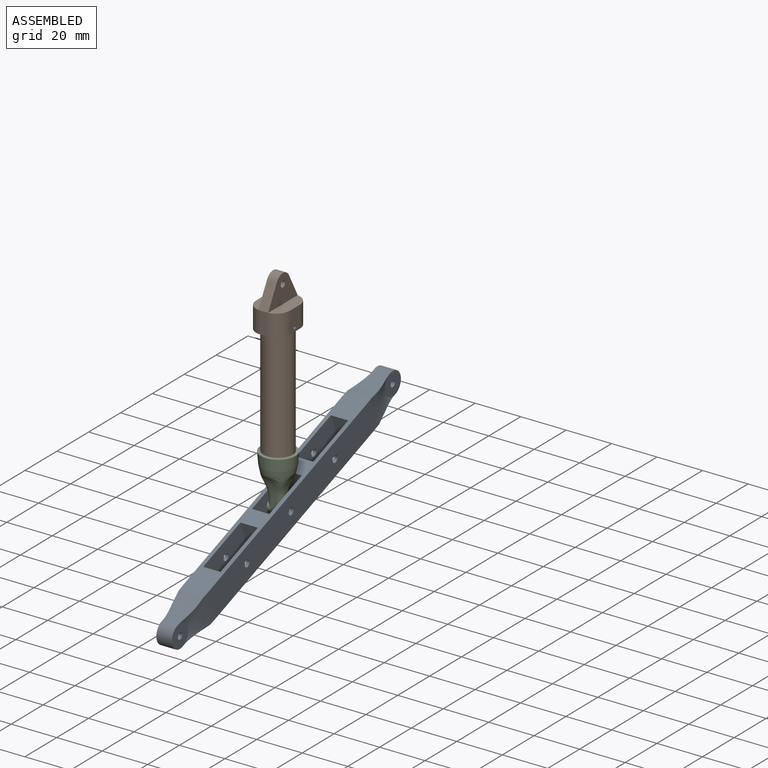
[diagram: assembled view]
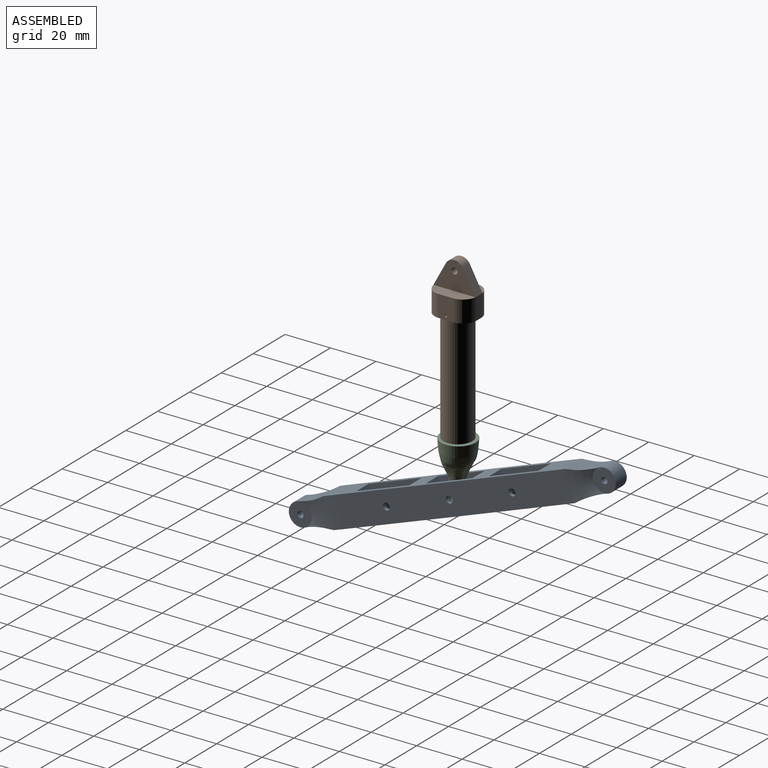
[diagram: assembled view, second angle]
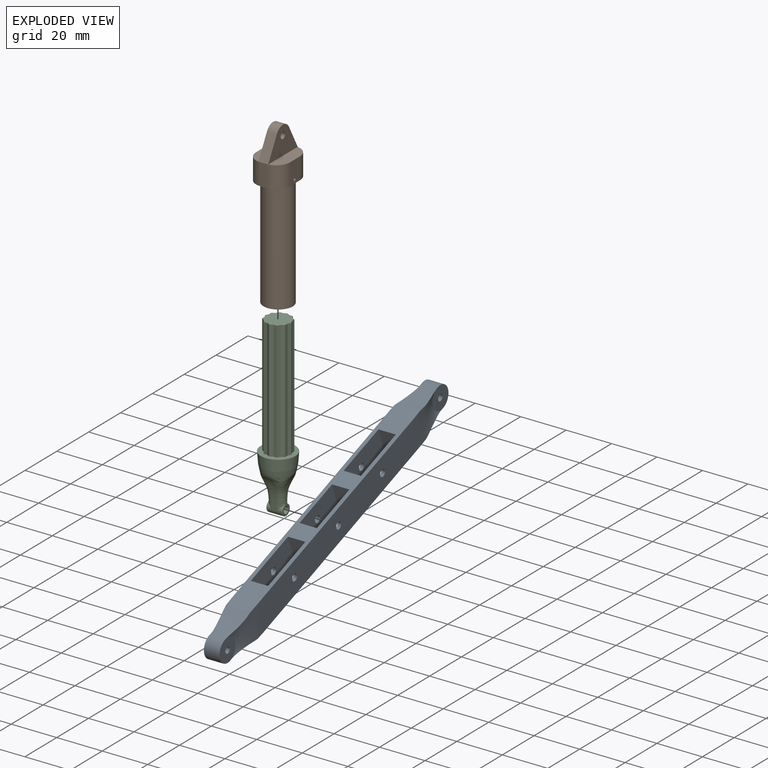
[diagram: exploded view]
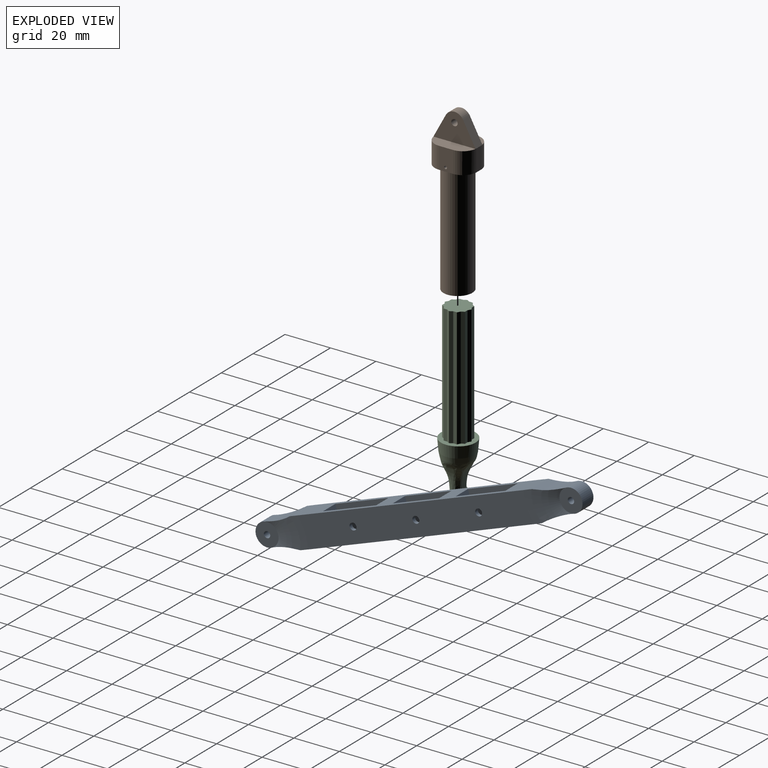
[diagram: exploded view, second angle]
ASSEMBLY  parts=3 mates=2
PART A: 39 faces, bbox 11x152.8x38.3 mm
  f0: plane 113.28x11.04mm, normal (0,0,1), area 701.8mm2, adj f6,f7,f13,f14,f23,f24,f25,f26
  f1: plane 56.71x11.04mm, normal (0,0,-1), area 354.4mm2, adj f2,f8,f13,f14,f24,f26,f32,f33
  f2: plane 56.71x11.04mm, normal (0,0,-1), area 347.6mm2, adj f1,f9,f13,f14,f23,f25,f27,f28
  f3: cylinder r=1.52mm len=3.05mm, axis (-1,0,0), area 15.8mm2, adj f13,f38
  f4: cylinder r=1.52mm len=3.05mm, axis (-1,0,0), area 15.8mm2, adj f13,f32
  f5: cylinder r=1.52mm len=3.05mm, axis (-1,0,0), area 15.8mm2, adj f13,f29
  f6: cylinder r=40.03mm len=14.67mm, axis (-1,0,0), area 128.6mm2, adj f0,f19,f21,f22,f23,f25
  f7: cylinder r=40.03mm len=14.67mm, axis (-1,0,0), area 128.6mm2, adj f0,f15,f17,f18,f24,f26
  f8: cylinder r=40.03mm len=14.66mm, axis (-1,0,0), area 129mm2, adj f1,f15,f17,f18,f24,f26
  f9: cylinder r=40.03mm len=14.66mm, axis (-1,0,0), area 129mm2, adj f2,f19,f21,f22,f23,f25
  f10: cylinder r=1.52mm len=3.05mm, axis (-1,0,0), area 15.8mm2, adj f14,f36
  f11: cylinder r=1.52mm len=3.05mm, axis (-1,0,0), area 15.8mm2, adj f14,f33
  f12: cylinder r=1.52mm len=3.05mm, axis (-1,0,0), area 15.8mm2, adj f14,f30
  f13: plane 106.25x13.21mm, normal (1,0,0), area 1357.4mm2, adj f0,f1,f2,f3,f4,f5,f25,f26
  f14: plane 106.25x13.21mm, normal (-1,0,0), area 1357.4mm2, adj f0,f1,f2,f10,f11,f12,f23,f24
  f15: cylinder r=5.08mm len=10.16mm, axis (-1,0,0), area 109.4mm2, adj f7,f8,f17,f18
  f16: cylinder r=1.4mm len=6.86mm, axis (-1,0,0), area 60.2mm2, adj f17,f18
  f17: plane 10.16x10.16mm, normal (1,0,0), area 74.9mm2, adj f7,f8,f15,f16,f26
  f18: plane 10.16x10.16mm, normal (-1,0,0), area 74.9mm2, adj f7,f8,f15,f16,f24
  f19: cylinder r=5.08mm len=10.16mm, axis (-1,0,0), area 109.4mm2, adj f6,f9,f21,f22
  f20: cylinder r=1.4mm len=6.86mm, axis (-1,0,0), area 60.2mm2, adj f21,f22
  f21: plane 10.16x10.16mm, normal (1,0,0), area 74.9mm2, adj f6,f9,f19,f20,f25
  f22: plane 10.16x10.16mm, normal (-1,0,0), area 74.9mm2, adj f6,f9,f19,f20,f23
  f23: torus R=19.3mm, axis (1,0,0), area 175.4mm2, adj f0,f2,f6,f9,f14,f22
  f24: torus R=19.3mm, axis (1,0,0), area 175.4mm2, adj f0,f1,f7,f8,f14,f18
  f25: torus R=19.3mm, axis (1,0,0), area 175.4mm2, adj f0,f2,f6,f9,f13,f21
  f26: torus R=19.3mm, axis (1,0,0), area 175.4mm2, adj f0,f1,f7,f8,f13,f17
  f27: plane 13.16x7.62mm, normal (0,-1,0), area 100.3mm2, adj f0,f2,f29,f30
  f28: plane 13.19x7.62mm, normal (0,1,0), area 100.5mm2, adj f0,f2,f29,f30
  f29: plane 23.33x13.19mm, normal (-1,0,0), area 300.1mm2, adj f0,f2,f5,f27,f28
  f30: plane 23.33x13.19mm, normal (1,0,0), area 300.1mm2, adj f0,f2,f12,f27,f28
  f31: plane 13.2x7.62mm, normal (0,-1,0), area 100.5mm2, adj f0,f2,f32,f33
  f32: plane 21.78x13.21mm, normal (-1,0,0), area 280.2mm2, adj f0,f1,f2,f4,f31,f34
  f33: plane 21.78x13.21mm, normal (1,0,0), area 280.2mm2, adj f0,f1,f2,f11,f31,f34
  f34: plane 13.2x7.62mm, normal (0,1,0), area 100.6mm2, adj f0,f1,f32,f33
  f35: plane 13.19x7.62mm, normal (0,-1,0), area 100.5mm2, adj f0,f1,f36,f38
  f36: plane 24.93x13.19mm, normal (1,0,0), area 321.2mm2, adj f0,f1,f10,f35,f37
  f37: plane 13.16x7.62mm, normal (0,1,0), area 100.3mm2, adj f0,f1,f36,f38
  f38: plane 24.93x13.19mm, normal (-1,0,0), area 321.2mm2, adj f0,f1,f3,f35,f37
PART B: 47 faces, bbox 15.1x18.7x71.2 mm
  f0: plane 12.95x12.7mm, normal (0,0,-1), area 34.2mm2, adj f18,f19,f20,f21,f22,f23,f24,f25
  f1: plane 18.54x14.99mm, normal (0,0,-1), area 116.7mm2, adj f9,f11,f12,f13,f14,f15,f16,f17
  f2: plane 10.13x5.53mm, normal (0,-0.88,0.48), area 49.4mm2, adj f4,f6,f7,f11,f15,f17
  f3: plane 10.13x5.53mm, normal (0,0.88,0.48), area 49.4mm2, adj f4,f6,f7,f9,f14,f16
  f4: cylinder r=4.32mm len=7.59mm, axis (-1,0,0), area 40mm2, adj f2,f3,f6,f7
  f5: cylinder r=1.4mm len=4.32mm, axis (-1,0,0), area 37.9mm2, adj f6,f7
  f6: plane 18.43x12.33mm, normal (1,0,0), area 137.6mm2, adj f2,f3,f4,f5,f8,f16,f17
  f7: plane 18.43x12.33mm, normal (-1,0,0), area 137.6mm2, adj f2,f3,f4,f5,f10,f14,f15
  f8: plane 18.43x5.33mm, normal (0,0,1), area 82.6mm2, adj f6,f12,f16,f17
  f9: plane 9.52x2.64mm, normal (0,1,0), area 25.1mm2, adj f1,f3,f14,f16
  f10: plane 18.43x5.33mm, normal (0,0,1), area 82.6mm2, adj f7,f13,f14,f15
  f11: plane 9.52x2.64mm, normal (0,-1,0), area 25.1mm2, adj f1,f2,f15,f17
  f12: plane 9.52x6.2mm, normal (1,0,0), area 57.7mm2, adj f1,f8,f16,f17,f46
  f13: plane 9.52x6.2mm, normal (-1,0,0), area 57.7mm2, adj f1,f10,f14,f15,f45
  f14: cylinder r=6.17mm len=9.62mm, axis (0,0,1), area 92.3mm2, adj f1,f3,f7,f9,f10,f13
  f15: cylinder r=6.17mm len=9.62mm, axis (0,0,-1), area 92.3mm2, adj f1,f2,f7,f10,f11,f13
  f16: cylinder r=6.17mm len=9.62mm, axis (0,0,-1), area 92.3mm2, adj f1,f3,f6,f8,f9,f12
  f17: cylinder r=6.17mm len=9.62mm, axis (0,0,1), area 92.3mm2, adj f1,f2,f6,f8,f11,f12
  f18: cylinder r=6.48mm len=49.28mm, axis (0,0,-1), area 990.2mm2, adj f0,f1,f19
  f19: cylinder r=6.48mm len=49.28mm, axis (0,0,1), area 990.2mm2, adj f0,f1,f18
  f20: plane 52.48x1.39mm, normal (-0.91,-0.4,0), area 79.8mm2, adj f0,f21,f43,f44
  f21: plane 52.48x1.24mm, normal (-0.58,-0.82,0), area 79.8mm2, adj f0,f20,f22,f44
  f22: plane 52.48x1.59mm, normal (-1,0.09,0), area 83.9mm2, adj f0,f21,f23,f44
  f23: plane 52.51x1.5mm, normal (-0.91,-0.4,0), area 82.5mm2, adj f0,f22,f24,f44,f46
  f24: plane 52.48x1.23mm, normal (-0.81,0.59,0), area 79.7mm2, adj f0,f23,f25,f44,f46
  f25: plane 52.48x1.51mm, normal (-1,0.09,0), area 79.8mm2, adj f0,f24,f26,f44
  f26: plane 52.48x1.45mm, normal (-0.42,0.91,0), area 83.9mm2, adj f0,f25,f27,f44
  f27: plane 52.48x1.29mm, normal (-0.81,0.59,0), area 83.9mm2, adj f0,f26,f28,f44
  f28: plane 52.48x1.51mm, normal (0.11,0.99,0), area 79.8mm2, adj f0,f27,f29,f44
  f29: plane 52.48x1.38mm, normal (-0.42,0.91,0), area 79.8mm2, adj f0,f28,f30,f44
  f30: plane 52.48x1.3mm, normal (0.58,0.82,0), area 83.9mm2, adj f0,f29,f31,f44
  f31: plane 52.48x1.59mm, normal (0.11,0.99,0), area 83.9mm2, adj f0,f30,f32,f44
  f32: plane 52.48x1.39mm, normal (0.91,0.4,0), area 79.8mm2, adj f0,f31,f33,f44
  f33: plane 52.48x1.24mm, normal (0.58,0.82,0), area 79.8mm2, adj f0,f32,f34,f44
  f34: plane 52.48x1.59mm, normal (1,-0.09,0), area 83.9mm2, adj f0,f33,f35,f44
  f35: plane 52.59x1.58mm, normal (0.91,0.4,0), area 82.5mm2, adj f0,f34,f36,f44,f45
  f36: plane 52.48x1.23mm, normal (0.81,-0.59,0), area 79.8mm2, adj f0,f35,f37,f44
  f37: plane 52.48x1.51mm, normal (1,-0.09,0), area 79.8mm2, adj f0,f36,f38,f44
  f38: plane 52.48x1.45mm, normal (0.42,-0.91,0), area 83.9mm2, adj f0,f37,f39,f44
  f39: plane 52.48x1.29mm, normal (0.81,-0.59,0), area 83.9mm2, adj f0,f38,f40,f44
  f40: plane 52.48x1.51mm, normal (-0.11,-0.99,0), area 79.8mm2, adj f0,f39,f41,f44
  f41: plane 52.48x1.38mm, normal (0.42,-0.91,0), area 79.8mm2, adj f0,f40,f42,f44
  f42: plane 52.48x1.3mm, normal (-0.58,-0.82,0), area 83.9mm2, adj f0,f41,f43,f44
  f43: plane 52.48x1.59mm, normal (-0.11,-0.99,0), area 83.9mm2, adj f0,f20,f42,f44
  f44: plane 11.59x11.57mm, normal (0,0,-1), area 94.3mm2, adj f20,f21,f22,f23,f24,f25,f26,f27
  f45: cylinder r=0.64mm len=2.3mm, axis (1,0,0), area 8mm2, adj f13,f35
  f46: cylinder r=0.64mm len=2.23mm, axis (1,0,0), area 7.8mm2, adj f12,f23,f24
PART C: 71 faces, bbox 19.7x18.1x77.7 mm
  f0: torus R=17.27mm, axis (0,0,1), area 2.3mm2, adj f50,f57,f63
  f1: torus R=17.27mm, axis (0,0,1), area 1.7mm2, adj f50,f53,f54
  f2: torus R=17.27mm, axis (0,0,1), area 1.7mm2, adj f50,f59,f64
  f3: extruded ~13.72x4.09mm, area 41.3mm2, adj f4,f11,f12,f15,f16,f63,f66,f68
  f4: cylinder r=2.44mm len=6.6mm, axis (1,0,0), area 63.8mm2, adj f3,f5,f11,f13,f15,f17,f21,f22
  f5: extruded ~13.04x3.94mm, area 39.6mm2, adj f4,f13,f14,f17,f18,f54,f56,f59
  f6: cylinder r=16.13mm len=8.81mm, axis (0,1,0), area 20.1mm2, adj f7,f12,f14,f51,f53,f55,f57,f61
  f7: plane 7.37x4.37mm, normal (-1,0,0), area 7.4mm2, adj f6,f11,f13,f20,f22
  f8: cylinder r=16.13mm len=8.81mm, axis (0,1,0), area 20.1mm2, adj f9,f16,f18,f58,f64,f65,f67,f69
  f9: plane 7.37x4.37mm, normal (1,0,0), area 7.4mm2, adj f8,f15,f17,f19,f21
  f10: cylinder r=1.46mm len=6.86mm, axis (1,0,0), area 62.9mm2, adj f19,f20
  f11: bspline ~7.62x2.9mm, area 13.5mm2, adj f3,f4,f7,f12,f22
  f12: bspline ~8.38x4.26mm, area 18.8mm2, adj f3,f6,f11,f61
  f13: bspline ~9.02x2.75mm, area 13.3mm2, adj f4,f5,f7,f14,f22
  f14: bspline ~7.22x4.25mm, area 17.7mm2, adj f5,f6,f13,f51
  f15: bspline ~9.39x3.24mm, area 13.5mm2, adj f3,f4,f9,f16,f21
  f16: bspline ~8.38x4.26mm, area 18.8mm2, adj f3,f8,f15,f69
  f17: bspline ~9.02x2.75mm, area 13.3mm2, adj f4,f5,f9,f18,f21
  f18: bspline ~7.22x4.25mm, area 17.7mm2, adj f5,f8,f17,f58
  f19: torus R=1.59mm, axis (-1,0,0), area 1.9mm2, adj f9,f10
  f20: torus R=1.59mm, axis (-1,0,0), area 1.9mm2, adj f7,f10
  f21: torus R=2.18mm, axis (-1,0,0), area 5.4mm2, adj f4,f9,f15,f17
  f22: torus R=2.18mm, axis (-1,0,0), area 5.4mm2, adj f4,f7,f11,f13
  f23: plane 11.64x11.64mm, normal (0,0,1), area 94.3mm2, adj f24,f25,f26,f27,f28,f29,f30,f31
  f24: plane 52.48x1.37mm, normal (-0.87,0.5,0), area 83mm2, adj f23,f25,f47,f48
  f25: plane 52.48x1.36mm, normal (-0.51,0.86,0), area 83mm2, adj f23,f24,f26,f48
  f26: plane 52.48x1.54mm, normal (-1,-0.01,0), area 80.6mm2, adj f23,f25,f27,f48
  f27: plane 52.48x1.33mm, normal (-0.87,0.5,0), area 80.6mm2, adj f23,f26,f28,f48
  f28: plane 52.48x1.37mm, normal (-0.87,-0.5,0), area 83mm2, adj f23,f27,f29,f48
  f29: plane 52.48x1.58mm, normal (-1,-0.01,0), area 83mm2, adj f23,f28,f30,f48
  f30: plane 52.48x1.34mm, normal (-0.49,-0.87,0), area 80.6mm2, adj f23,f29,f31,f48
  f31: plane 52.48x1.33mm, normal (-0.87,-0.5,0), area 80.6mm2, adj f23,f30,f32,f48
  f32: plane 52.48x1.58mm, normal (0,-1,0), area 83mm2, adj f23,f31,f33,f48
  f33: plane 52.48x1.38mm, normal (-0.49,-0.87,0), area 83mm2, adj f23,f32,f34,f48
  f34: plane 52.48x1.32mm, normal (0.51,-0.86,0), area 80.6mm2, adj f23,f33,f35,f48
  f35: plane 52.48x1.54mm, normal (0,-1,0), area 80.6mm2, adj f23,f34,f36,f48
  f36: plane 52.48x1.37mm, normal (0.87,-0.5,0), area 83mm2, adj f23,f35,f37,f48
  f37: plane 52.48x1.36mm, normal (0.51,-0.86,0), area 83mm2, adj f23,f36,f38,f48
  f38: plane 52.48x1.54mm, normal (1,0.01,0), area 80.6mm2, adj f23,f37,f39,f48
  f39: plane 52.48x1.33mm, normal (0.87,-0.5,0), area 80.6mm2, adj f23,f38,f40,f48
  f40: plane 52.48x1.37mm, normal (0.87,0.5,0), area 83mm2, adj f23,f39,f41,f48
  f41: plane 52.48x1.58mm, normal (1,0.01,0), area 83mm2, adj f23,f40,f42,f48
  f42: plane 52.48x1.34mm, normal (0.49,0.87,0), area 80.6mm2, adj f23,f41,f43,f48
  f43: plane 52.48x1.33mm, normal (0.87,0.5,0), area 80.6mm2, adj f23,f42,f44,f48
  f44: plane 52.48x1.58mm, normal (0,1,0), area 83mm2, adj f23,f43,f45,f48
  f45: plane 52.48x1.38mm, normal (0.49,0.87,0), area 83mm2, adj f23,f44,f46,f48
  f46: plane 52.48x1.32mm, normal (-0.51,0.86,0), area 80.6mm2, adj f23,f45,f47,f48
  f47: plane 52.48x1.54mm, normal (0,1,0), area 80.6mm2, adj f23,f24,f46,f48
  f48: plane 15.24x15.24mm, normal (0,0,1), area 88.1mm2, adj f24,f25,f26,f27,f28,f29,f30,f31
  f49: torus R=17.27mm, axis (0,0,1), area 2.3mm2, adj f50,f67,f68
  f50: revolved ~15.22x15.22mm, area 349mm2, adj f0,f1,f2,f48,f49,f55,f56,f65
  f51: bspline ~3.29x2.97mm, area 5.9mm2, adj f6,f14,f52,f54
  f52: bspline ~4.07x2.72mm, area 2.7mm2, adj f51,f53,f54
  f53: bspline ~5.38x4.23mm, area 7.6mm2, adj f1,f6,f52,f55
  f54: bspline ~8.87x7.68mm, area 13mm2, adj f1,f5,f51,f52,f56
  f55: bspline ~5.54x1.82mm, area 4.4mm2, adj f6,f50,f53,f57
  f56: bspline ~8.04x2.72mm, area 12.8mm2, adj f5,f50,f54,f59
  f57: bspline ~5.66x5.19mm, area 9.7mm2, adj f0,f6,f55,f60
  f58: bspline ~3.29x2.97mm, area 5.9mm2, adj f8,f18,f59,f62
  f59: bspline ~8.55x7.22mm, area 13mm2, adj f2,f5,f56,f58,f62
  f60: bspline ~4.57x2.9mm, area 3.5mm2, adj f57,f61,f63
  f61: bspline ~3.27x2.88mm, area 3.2mm2, adj f6,f12,f60,f63
  f62: bspline ~4.07x2.72mm, area 2.7mm2, adj f58,f59,f64
  f63: bspline ~7.18x6.14mm, area 11.3mm2, adj f0,f3,f60,f61,f66
  f64: bspline ~5.38x4.23mm, area 7.6mm2, adj f2,f8,f62,f65
  f65: bspline ~4.95x1.82mm, area 4.4mm2, adj f8,f50,f64,f67
  f66: bspline ~6.64x2.19mm, area 8.8mm2, adj f3,f50,f63,f68
  f67: bspline ~5.66x5.19mm, area 9.7mm2, adj f8,f49,f65,f70
  f68: bspline ~7.5x6.46mm, area 11.3mm2, adj f3,f49,f66,f69,f70
  f69: bspline ~3.43x2.95mm, area 3.2mm2, adj f8,f16,f68,f70
  f70: bspline ~4.57x2.9mm, area 3.5mm2, adj f67,f68,f69
PLACE A rot(axis=(1,0,0),20.2deg) t=(-26.88,-34.47,-34.78)mm
PLACE B t=(-27.08,-3.73,17.53)mm fixed
PLACE C rot(axis=(0,0,1),180deg) t=(4.01,-17.25,49.37)mm
MATE revolute C.f20 <-> A.f4  axis (-1,0,0) through (-30.69,-10.71,-25.66)mm
MATE slider C.f23 <-> B.f19  axis (0,0,1) through (-27.08,-10.71,49.37)mm
